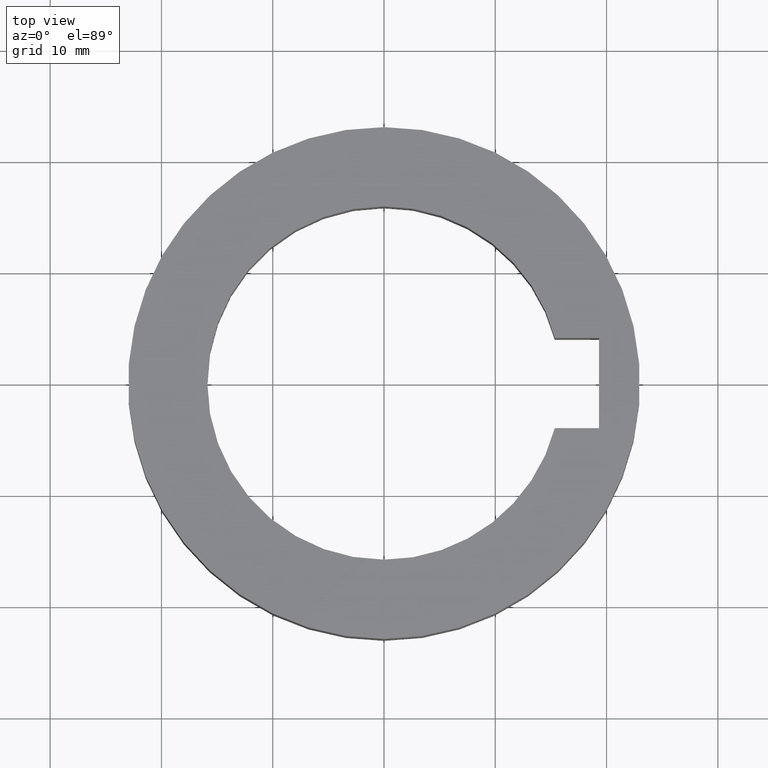
[diagram: clean part render]
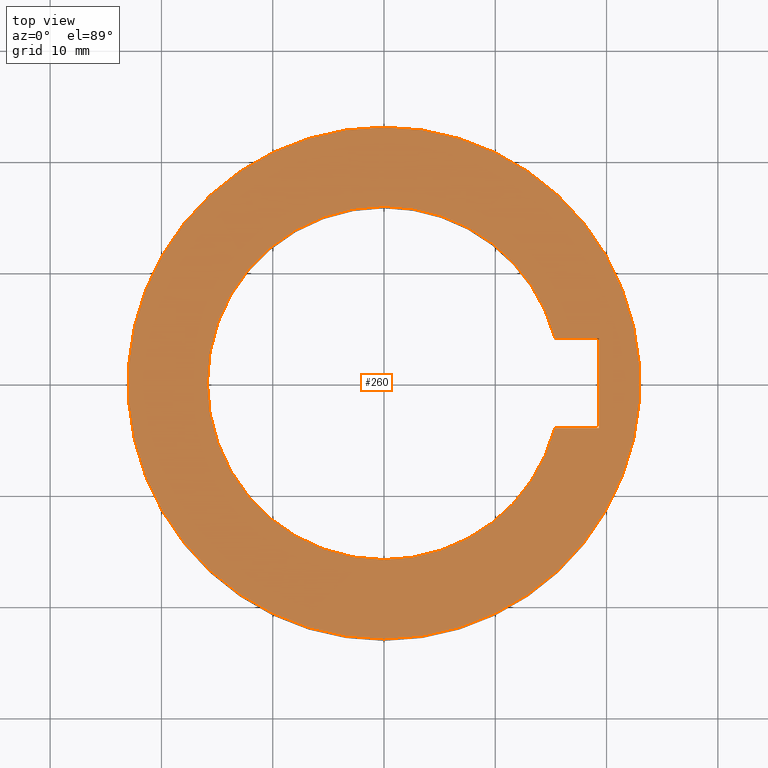
[diagram: same view with one face highlighted and labeled with its STEP entity id]
A machine part, top view. The second image highlights one B-rep face of the part: STEP entity #260.
In plain terms, the highlighted planar face has unit normal (0, 0, -1).
Its self-contained STEP definition (entity closure, byte-faithful):
#32=CARTESIAN_POINT('',(0.E0,1.230770033143E-14,0.E0));
#33=DIRECTION('',(0.E0,0.E0,-1.E0));
#34=DIRECTION('',(0.E0,-1.E0,0.E0));
#35=AXIS2_PLACEMENT_3D('',#32,#33,#34);
#40=CARTESIAN_POINT('',(0.E0,1.230770033143E-14,0.E0));
#41=DIRECTION('',(0.E0,0.E0,-1.E0));
#42=DIRECTION('',(0.E0,1.E0,0.E0));
#43=AXIS2_PLACEMENT_3D('',#40,#41,#42);
#48=CARTESIAN_POINT('',(0.E0,1.230770033143E-14,0.E0));
#49=DIRECTION('',(0.E0,0.E0,1.E0));
#50=DIRECTION('',(9.669098974721E-1,2.551181102362E-1,0.E0));
#51=AXIS2_PLACEMENT_3D('',#48,#49,#50);
#56=CARTESIAN_POINT('',(0.E0,1.230770033143E-14,0.E0));
#57=DIRECTION('',(0.E0,0.E0,1.E0));
#58=DIRECTION('',(0.E0,1.E0,0.E0));
#59=AXIS2_PLACEMENT_3D('',#56,#57,#58);
#64=CARTESIAN_POINT('',(0.E0,1.230770033143E-14,0.E0));
#65=DIRECTION('',(0.E0,0.E0,1.E0));
#66=DIRECTION('',(0.E0,-1.E0,0.E0));
#67=AXIS2_PLACEMENT_3D('',#64,#65,#66);
#154=DIRECTION('',(-1.E0,1.027750158167E-14,0.E0));
#155=VECTOR('',#154,3.975305377630E0);
#156=CARTESIAN_POINT('',(1.9325E1,-4.05E0,0.E0));
#157=LINE('',#156,#155);
#168=DIRECTION('',(0.E0,-1.E0,0.E0));
#169=VECTOR('',#168,8.1E0);
#170=CARTESIAN_POINT('',(1.9325E1,4.05E0,0.E0));
#171=LINE('',#170,#169);
#175=DIRECTION('',(1.E0,0.E0,0.E0));
#176=VECTOR('',#175,3.975305377630E0);
#177=CARTESIAN_POINT('',(1.534969462237E1,4.05E0,0.E0));
#178=LINE('',#177,#176);
#182=CARTESIAN_POINT('',(0.E0,-1.5875E1,0.E0));
#183=CARTESIAN_POINT('',(1.534969462237E1,-4.05E0,0.E0));
#184=VERTEX_POINT('',#182);
#185=VERTEX_POINT('',#183);
#186=CARTESIAN_POINT('',(0.E0,1.5875E1,0.E0));
#187=VERTEX_POINT('',#186);
#188=CARTESIAN_POINT('',(1.534969462237E1,4.05E0,0.E0));
#189=VERTEX_POINT('',#188);
#198=CARTESIAN_POINT('',(0.E0,-2.3E1,0.E0));
#199=CARTESIAN_POINT('',(0.E0,2.3E1,0.E0));
#200=VERTEX_POINT('',#198);
#201=VERTEX_POINT('',#199);
#202=CARTESIAN_POINT('',(1.9325E1,-4.05E0,0.E0));
#203=VERTEX_POINT('',#202);
#204=CARTESIAN_POINT('',(1.9325E1,4.05E0,0.E0));
#205=VERTEX_POINT('',#204);
#238=CARTESIAN_POINT('',(0.E0,1.224646799147E-14,0.E0));
#239=DIRECTION('',(0.E0,0.E0,-1.E0));
#240=DIRECTION('',(0.E0,-1.E0,0.E0));
#241=AXIS2_PLACEMENT_3D('',#238,#239,#240);
#242=PLANE('',#241);
#244=ORIENTED_EDGE('',*,*,#243,.T.);
#246=ORIENTED_EDGE('',*,*,#245,.T.);
#247=EDGE_LOOP('',(#244,#246));
#248=FACE_OUTER_BOUND('',#247,.F.);
#250=ORIENTED_EDGE('',*,*,#249,.F.);
#252=ORIENTED_EDGE('',*,*,#251,.F.);
#254=ORIENTED_EDGE('',*,*,#253,.F.);
#255=ORIENTED_EDGE('',*,*,#223,.T.);
#256=ORIENTED_EDGE('',*,*,#221,.T.);
#257=ORIENTED_EDGE('',*,*,#219,.T.);
#258=EDGE_LOOP('',(#250,#252,#254,#255,#256,#257));
#259=FACE_BOUND('',#258,.F.);
#36=CIRCLE('',#35,2.3E1);
#44=CIRCLE('',#43,2.3E1);
#52=CIRCLE('',#51,1.5875E1);
#60=CIRCLE('',#59,1.5875E1);
#68=CIRCLE('',#67,1.5875E1);
#219=EDGE_CURVE('',#184,#185,#68,.T.);
#221=EDGE_CURVE('',#187,#184,#60,.T.);
#223=EDGE_CURVE('',#189,#187,#52,.T.);
#243=EDGE_CURVE('',#200,#201,#36,.T.);
#245=EDGE_CURVE('',#201,#200,#44,.T.);
#249=EDGE_CURVE('',#203,#185,#157,.T.);
#251=EDGE_CURVE('',#205,#203,#171,.T.);
#253=EDGE_CURVE('',#189,#205,#178,.T.);
#260=ADVANCED_FACE('',(#248,#259),#242,.F.);